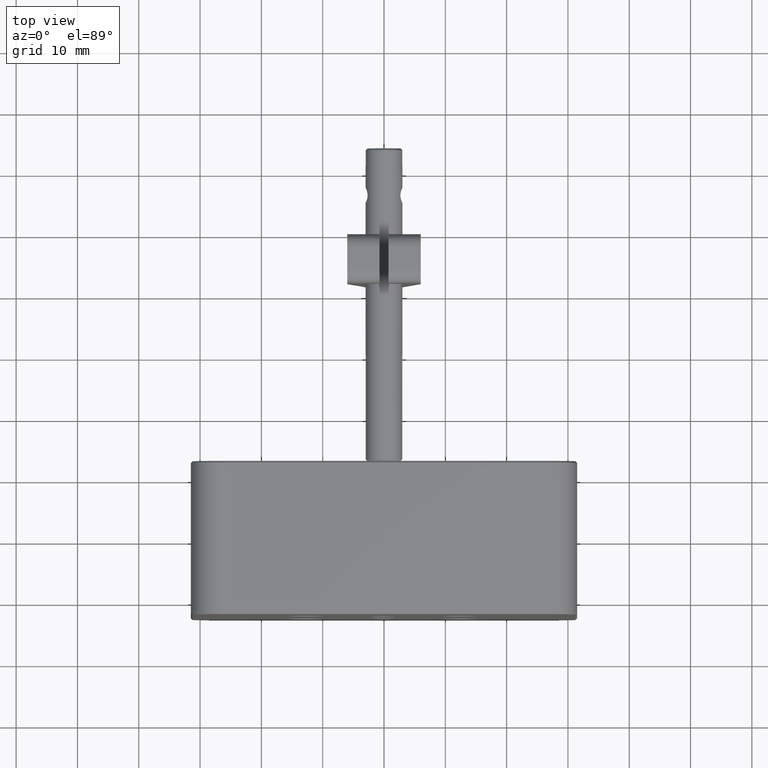
[diagram: clean part render]
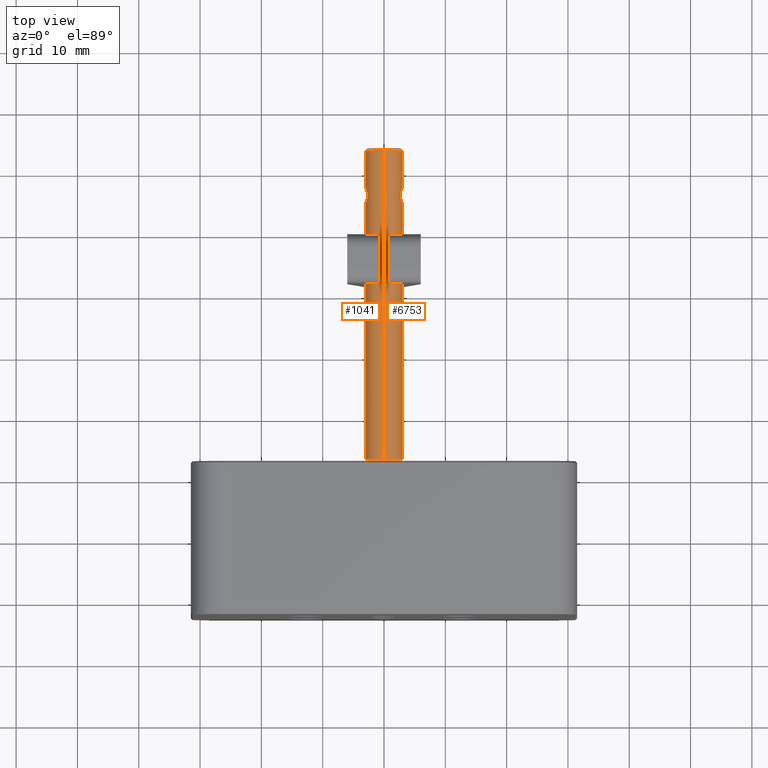
[diagram: same view with one multi-face feature highlighted, each face labeled with its STEP entity id]
A machine part, top view. The highlighted faces form ONE feature: a constant-radius fillet chain: 2 tangent blend faces with common blend radius 3 mm. The faces share edges in the B-rep.
Their STEP definitions:
[1] entity #6753 (Cylinder):
#29 = CARTESIAN_POINT ( 'NONE',  ( 2.742993584607485325, 55.32000686271995704, 28.21549903122157232 ) ) ;
#30 = B_SPLINE_CURVE_WITH_KNOTS ( 'NONE', 3,
 ( #7488, #5297, #6118, #1578, #2333, #7514, #9062, #142, #5329, #876, #6085, #3132, #1619, #6816, #4629, #3018, #3051, #1460, #6641, #8145, #7219, #1938 ),
 .UNSPECIFIED., .F., .F.,
 ( 4, 2, 2, 2, 2, 2, 2, 2, 2, 2, 4 ),
 ( 0.5000000000000000000, 0.5625000000000026645, 0.6250000000000052180, 0.6875000000000078826, 0.7187500000000077716, 0.7500000000000076605, 0.8125000000000074385, 0.8437500000000062172, 0.8750000000000048850, 0.9375000000000024425, 1.000000000000000000 ),
 .UNSPECIFIED. ) ;
#142 = CARTESIAN_POINT ( 'NONE',  ( 2.711093813284435772, 56.28645877782742701, 25.71493839912893620 ) ) ;
#146 = CARTESIAN_POINT ( 'NONE',  ( 1.266363902315430628E-15, 63.20000000000000284, 29.99999999999999645 ) ) ;
#179 = CARTESIAN_POINT ( 'NONE',  ( 3.000000000000002665, 54.62858803072960967, 26.99999999999999645 ) ) ;
#225 = VECTOR ( 'NONE', #4037, 1000.000000000000000 ) ;
#266 = VERTEX_POINT ( 'NONE', #1054 ) ;
#714 = CARTESIAN_POINT ( 'NONE',  ( 3.000000000000002665, 54.62858803072960967, 26.99999999999999645 ) ) ;
#767 = CARTESIAN_POINT ( 'NONE',  ( 2.863156291266175213, 56.82077885195585765, 27.89809188652233019 ) ) ;
#864 = EDGE_CURVE ( 'NONE', #266, #8354, #8572, .T. ) ;
#876 = CARTESIAN_POINT ( 'NONE',  ( 2.680936225662289729, 56.04636775738813981, 25.65353188658233563 ) ) ;
#1054 = CARTESIAN_POINT ( 'NONE',  ( -6.297159551001143805E-16, 12.80000000000001315, 30.00000000000000000 ) ) ;
#1130 = CARTESIAN_POINT ( 'NONE',  ( -1.410501157148619000E-15, 7.500000000000020428, 24.00000000000000000 ) ) ;
#1432 = ORIENTED_EDGE ( 'NONE', *, *, #6834, .T. ) ;
#1460 = CARTESIAN_POINT ( 'NONE',  ( 2.884629081610074142, 54.88045870483150424, 26.16566217916410508 ) ) ;
#1467 = CARTESIAN_POINT ( 'NONE',  ( 2.982912540820880309, 54.66257313694116249, 27.36001679651247898 ) ) ;
#1578 = CARTESIAN_POINT ( 'NONE',  ( 2.924960236120061285, 56.97105211024325655, 26.31264447736193191 ) ) ;
#1619 = CARTESIAN_POINT ( 'NONE',  ( 2.695653176012114738, 55.54786774696943752, 25.68126583301325638 ) ) ;
#1649 = AXIS2_PLACEMENT_3D ( 'NONE', #8612, #7736, #9308 ) ;
#1938 = CARTESIAN_POINT ( 'NONE',  ( 3.000000000000002665, 54.62858803072960967, 26.99999999999999645 ) ) ;
#2198 = VERTEX_POINT ( 'NONE', #4138 ) ;
#2221 = CARTESIAN_POINT ( 'NONE',  ( 2.695361982634222553, 55.54887713839933383, 28.31940538992521539 ) ) ;
#2286 = CARTESIAN_POINT ( 'NONE',  ( 2.800714651327416593, 56.64958877824351902, 28.08301864307926721 ) ) ;
#2333 = CARTESIAN_POINT ( 'NONE',  ( 2.884294066402455670, 56.87868913147992345, 26.16454869500139324 ) ) ;
#2828 = CARTESIAN_POINT ( 'NONE',  ( -1.035800886337628865E-15, 7.500000000000020428, 27.00000000000000000 ) ) ;
#2928 = CARTESIAN_POINT ( 'NONE',  ( 3.000000000000001332, 54.62858799216142103, 27.17927250951342089 ) ) ;
#2989 = CARTESIAN_POINT ( 'NONE',  ( 2.676237538582455056, 55.96125347879695511, 28.35563736555018011 ) ) ;
#3018 = CARTESIAN_POINT ( 'NONE',  ( 2.800703641045307002, 55.11526152153748370, 25.92351790945599888 ) ) ;
#3051 = CARTESIAN_POINT ( 'NONE',  ( 2.821759406356729727, 55.05266209511345465, 25.97922823948040616 ) ) ;
#3056 = CARTESIAN_POINT ( 'NONE',  ( 2.939118746011079697, 57.00190417940464727, 27.60707133254236467 ) ) ;
#3132 = CARTESIAN_POINT ( 'NONE',  ( 2.676271852669692475, 55.71721700651286113, 25.64443038552985143 ) ) ;
#3357 = LINE ( 'NONE', #4547, #8817 ) ;
#3621 = VERTEX_POINT ( 'NONE', #179 ) ;
#3656 = CARTESIAN_POINT ( 'NONE',  ( 2.863688853552024405, 54.93783021983080772, 27.89643120297812473 ) ) ;
#3764 = CARTESIAN_POINT ( 'NONE',  ( 2.680838108646928397, 56.04462143588882128, 28.34665780393701340 ) ) ;
#3800 = B_SPLINE_CURVE_WITH_KNOTS ( 'NONE', 3,
 ( #714, #2928, #1467, #4515, #8215, #4459, #3656, #5250, #5941, #6002, #29, #2221, #7407, #2989, #3764, #6735, #8943, #5216, #2286, #767, #7476, #5972, #3056, #3957, #6805, #8248 ),
 .UNSPECIFIED., .F., .F.,
 ( 4, 2, 2, 2, 2, 2, 2, 2, 2, 2, 2, 2, 4 ),
 ( 0.0000000000000000000, 0.06249999999999550360, 0.09374999999999381051, 0.1249999999999921174, 0.1562499999999904243, 0.1874999999999887312, 0.2499999999999876765, 0.2812499999999883982, 0.3124999999999891753, 0.3749999999999912847, 0.4062499999999931721, 0.4374999999999951150, 0.5000000000000000000 ),
 .UNSPECIFIED. ) ;
#3804 = VERTEX_POINT ( 'NONE', #146 ) ;
#3957 = CARTESIAN_POINT ( 'NONE',  ( 2.982897722331992352, 57.09744145957878914, 27.36074866860555588 ) ) ;
#4037 = DIRECTION ( 'NONE',  ( 7.524126418315660586E-17, 1.000000000000000000, -7.612291374223398276E-17 ) ) ;
#4138 = CARTESIAN_POINT ( 'NONE',  ( 8.843574004376533366E-16, 63.20000000000000284, 23.99999999999999645 ) ) ;
#4181 = FACE_OUTER_BOUND ( 'NONE', #7645, .T. ) ;
#4459 = CARTESIAN_POINT ( 'NONE',  ( 2.884144009577224388, 54.88665983182728780, 27.82908781005663101 ) ) ;
#4513 = EDGE_CURVE ( 'NONE', #6719, #3621, #30, .T. ) ;
#4515 = CARTESIAN_POINT ( 'NONE',  ( 2.939647029497050923, 54.75691992952820897, 27.60441721679530147 ) ) ;
#4547 = CARTESIAN_POINT ( 'NONE',  ( -1.028494655270844175E-15, 7.500000000000020428, 30.00000000000000000 ) ) ;
#4629 = CARTESIAN_POINT ( 'NONE',  ( 2.761335869332166126, 55.24898266117230605, 25.82621177678168678 ) ) ;
#4648 = ORIENTED_EDGE ( 'NONE', *, *, #6887, .F. ) ;
#4692 = DIRECTION ( 'NONE',  ( -7.524126418315660586E-17, -1.000000000000000000, 7.612291374223398276E-17 ) ) ;
#4976 = LINE ( 'NONE', #1130, #225 ) ;
#4992 = CARTESIAN_POINT ( 'NONE',  ( 2.999999987643653387, 57.13141194402265910, 27.00027228311324734 ) ) ;
#5088 = DIRECTION ( 'NONE',  ( -1.249000902703301354E-16, 0.0000000000000000000, -1.000000000000000000 ) ) ;
#5216 = CARTESIAN_POINT ( 'NONE',  ( 2.757722252271193053, 56.51140873202456305, 28.18343022751907867 ) ) ;
#5238 = ORIENTED_EDGE ( 'NONE', *, *, #864, .T. ) ;
#5250 = CARTESIAN_POINT ( 'NONE',  ( 2.821769576235329424, 55.05261913779806804, 28.02074443925186742 ) ) ;
#5297 = CARTESIAN_POINT ( 'NONE',  ( 3.000016275080912287, 57.13145123874927833, 26.82081821784641917 ) ) ;
#5329 = CARTESIAN_POINT ( 'NONE',  ( 2.698549850065692368, 56.20927834188110239, 25.68918951284737417 ) ) ;
#5890 = FACE_BOUND ( 'NONE', #8528, .T. ) ;
#5941 = CARTESIAN_POINT ( 'NONE',  ( 2.800644241308079874, 55.11542206591926885, 28.07664938908856556 ) ) ;
#5972 = CARTESIAN_POINT ( 'NONE',  ( 2.922001930620950372, 56.96354853541588881, 27.68380853861775748 ) ) ;
#6002 = CARTESIAN_POINT ( 'NONE',  ( 2.761066167029606166, 55.24994033803589133, 28.17443420193783155 ) ) ;
#6085 = CARTESIAN_POINT ( 'NONE',  ( 2.676336387088770419, 55.96154252191108469, 25.64455780447437405 ) ) ;
#6118 = CARTESIAN_POINT ( 'NONE',  ( 2.983149971520965060, 57.09794586245956793, 26.64129922665397743 ) ) ;
#6237 = DIRECTION ( 'NONE',  ( 1.249000902703302587E-16, 0.0000000000000000000, 1.000000000000000000 ) ) ;
#6313 = EDGE_CURVE ( 'NONE', #2198, #3804, #6686, .T. ) ;
#6405 = ORIENTED_EDGE ( 'NONE', *, *, #6313, .T. ) ;
#6641 = CARTESIAN_POINT ( 'NONE',  ( 2.925036744140012690, 54.78878534946872492, 26.31294670080524511 ) ) ;
#6682 = AXIS2_PLACEMENT_3D ( 'NONE', #2828, #8047, #5088 ) ;
#6686 = CIRCLE ( 'NONE', #8305, 2.999999999999999112 ) ;
#6719 = VERTEX_POINT ( 'NONE', #4992 ) ;
#6735 = CARTESIAN_POINT ( 'NONE',  ( 2.698116405448399924, 56.20608288682623055, 28.31169663730920050 ) ) ;
#6753 = ADVANCED_FACE ( 'NONE', ( #4181, #5890 ), #8452, .T. ) ;
#6805 = CARTESIAN_POINT ( 'NONE',  ( 2.999983700206394488, 57.13137264929606118, 27.17972634838007906 ) ) ;
#6816 = CARTESIAN_POINT ( 'NONE',  ( 2.742473716033703823, 55.32231226451845885, 25.78334911375738514 ) ) ;
#6834 = EDGE_CURVE ( 'NONE', #3621, #6719, #3800, .T. ) ;
#6887 = EDGE_CURVE ( 'NONE', #266, #3804, #3357, .T. ) ;
#7077 = ORIENTED_EDGE ( 'NONE', *, *, #8522, .T. ) ;
#7219 = CARTESIAN_POINT ( 'NONE',  ( 3.000000000000001332, 54.62858806966088565, 26.81903971957688526 ) ) ;
#7407 = CARTESIAN_POINT ( 'NONE',  ( 2.676471506585906823, 55.71230894579573345, 28.35517541064196578 ) ) ;
#7476 = CARTESIAN_POINT ( 'NONE',  ( 2.883946077072312875, 56.87285482154926086, 27.82978577029155787 ) ) ;
#7488 = CARTESIAN_POINT ( 'NONE',  ( 2.999999987643653387, 57.13141194402265910, 27.00027228311324734 ) ) ;
#7514 = CARTESIAN_POINT ( 'NONE',  ( 2.800573892822808997, 56.64924384759742537, 25.91652548929492994 ) ) ;
#7645 = EDGE_LOOP ( 'NONE', ( #4648, #5238, #7077, #6405 ) ) ;
#7736 = DIRECTION ( 'NONE',  ( 7.524126418315660586E-17, 1.000000000000000000, -7.612291374223398276E-17 ) ) ;
#8047 = DIRECTION ( 'NONE',  ( 7.524126418315660586E-17, 1.000000000000000000, -7.612291374223398276E-17 ) ) ;
#8145 = CARTESIAN_POINT ( 'NONE',  ( 2.983215448895196964, 54.66190703844492305, 26.64179925184803466 ) ) ;
#8215 = CARTESIAN_POINT ( 'NONE',  ( 2.922115817965446727, 54.79619377405805380, 27.68330989394329578 ) ) ;
#8248 = CARTESIAN_POINT ( 'NONE',  ( 2.999999987643653387, 57.13141194402265910, 27.00027228311324734 ) ) ;
#8305 = AXIS2_PLACEMENT_3D ( 'NONE', #8483, #4692, #6237 ) ;
#8354 = VERTEX_POINT ( 'NONE', #9162 ) ;
#8452 = CYLINDRICAL_SURFACE ( 'NONE', #6682, 2.999999999999999112 ) ;
#8483 = CARTESIAN_POINT ( 'NONE',  ( 3.155137528664192917E-15, 63.20000000000000284, 26.99999999999999645 ) ) ;
#8522 = EDGE_CURVE ( 'NONE', #8354, #2198, #4976, .T. ) ;
#8528 = EDGE_LOOP ( 'NONE', ( #1432, #8801 ) ) ;
#8572 = CIRCLE ( 'NONE', #1649, 2.999999999999999112 ) ;
#8612 = CARTESIAN_POINT ( 'NONE',  ( -6.370221861668986767E-16, 12.80000000000001315, 27.00000000000000000 ) ) ;
#8801 = ORIENTED_EDGE ( 'NONE', *, *, #4513, .T. ) ;
#8817 = VECTOR ( 'NONE', #9142, 1000.000000000000000 ) ;
#8943 = CARTESIAN_POINT ( 'NONE',  ( 2.711166441064909893, 56.28673457485329834, 28.28489739273718229 ) ) ;
#9062 = CARTESIAN_POINT ( 'NONE',  ( 2.758114549131716942, 56.51315193445640972, 25.81743665551577038 ) ) ;
#9142 = DIRECTION ( 'NONE',  ( 7.524126418315660586E-17, 1.000000000000000000, -7.612291374223398276E-17 ) ) ;
#9162 = CARTESIAN_POINT ( 'NONE',  ( -1.011722456977889404E-15, 12.80000000000001315, 24.00000000000000000 ) ) ;
#9308 = DIRECTION ( 'NONE',  ( 1.249000902703301601E-16, 0.0000000000000000000, 1.000000000000000000 ) ) ;
[2] entity #1041 (Cylinder):
#37 = CARTESIAN_POINT ( 'NONE',  ( -2.800644241311746718, 55.11542206590202397, 25.92335061092050097 ) ) ;
#102 = CARTESIAN_POINT ( 'NONE',  ( -2.982897722332215729, 57.09744145957883887, 26.63925133139572310 ) ) ;
#146 = CARTESIAN_POINT ( 'NONE',  ( 1.266363902315430628E-15, 63.20000000000000284, 29.99999999999999645 ) ) ;
#225 = VECTOR ( 'NONE', #4037, 1000.000000000000000 ) ;
#266 = VERTEX_POINT ( 'NONE', #1054 ) ;
#421 = CARTESIAN_POINT ( 'NONE',  ( -2.711093813282989373, 56.28645877781801943, 28.28506160087420440 ) ) ;
#777 = CARTESIAN_POINT ( 'NONE',  ( -2.676237538582465714, 55.96125347878705725, 25.64436263444984121 ) ) ;
#811 = CARTESIAN_POINT ( 'NONE',  ( -2.922001930619495091, 56.96354853541279084, 26.31619146137668253 ) ) ;
#871 = CARTESIAN_POINT ( 'NONE',  ( -2.821769576249066436, 55.05261913775408544, 25.97925556078888576 ) ) ;
#970 = VERTEX_POINT ( 'NONE', #7974 ) ;
#1040 = EDGE_CURVE ( 'NONE', #8354, #266, #2150, .T. ) ;
#1041 = ADVANCED_FACE ( 'NONE', ( #1102, #6463 ), #3573, .T. ) ;
#1054 = CARTESIAN_POINT ( 'NONE',  ( -6.297159551001143805E-16, 12.80000000000001315, 30.00000000000000000 ) ) ;
#1067 = CARTESIAN_POINT ( 'NONE',  ( 3.155137528664192917E-15, 63.20000000000000284, 26.99999999999999645 ) ) ;
#1102 = FACE_BOUND ( 'NONE', #9590, .T. ) ;
#1130 = CARTESIAN_POINT ( 'NONE',  ( -1.410501157148619000E-15, 7.500000000000020428, 24.00000000000000000 ) ) ;
#1336 = CARTESIAN_POINT ( 'NONE',  ( -2.925036744138640454, 54.78878534947123313, 27.68705329920249270 ) ) ;
#1546 = CARTESIAN_POINT ( 'NONE',  ( -2.999999987643648502, 57.13141194402265910, 26.99972771688675621 ) ) ;
#1574 = CARTESIAN_POINT ( 'NONE',  ( -2.676471506585890836, 55.71230894581550785, 25.64482458935801290 ) ) ;
#1612 = CARTESIAN_POINT ( 'NONE',  ( -2.761066167025937546, 55.24994033805314331, 25.82556579805313746 ) ) ;
#1894 = CARTESIAN_POINT ( 'NONE',  ( -2.680936225660478733, 56.04636775736641141, 28.34646811342131301 ) ) ;
#1993 = CARTESIAN_POINT ( 'NONE',  ( -3.000016275080920281, 57.13145123874931386, 27.17918178229298576 ) ) ;
#2150 = CIRCLE ( 'NONE', #3543, 2.999999999999999112 ) ;
#2198 = VERTEX_POINT ( 'NONE', #4138 ) ;
#2259 = CARTESIAN_POINT ( 'NONE',  ( -2.711166441068684207, 56.28673457487393961, 25.71510260727103869 ) ) ;
#2313 = AXIS2_PLACEMENT_3D ( 'NONE', #1067, #8461, #4762 ) ;
#2392 = CARTESIAN_POINT ( 'NONE',  ( -2.999999999999998224, 54.62858803072961678, 26.99999999999999645 ) ) ;
#2640 = CARTESIAN_POINT ( 'NONE',  ( -2.676271852669786178, 55.71721700650703468, 28.35556961446994606 ) ) ;
#2654 = EDGE_CURVE ( 'NONE', #4537, #970, #5736, .T. ) ;
#2672 = CARTESIAN_POINT ( 'NONE',  ( -2.983149971524382771, 57.09794586246793813, 27.35870077332668870 ) ) ;
#2714 = CARTESIAN_POINT ( 'NONE',  ( -6.370221861668986767E-16, 12.80000000000001315, 27.00000000000000000 ) ) ;
#2751 = DIRECTION ( 'NONE',  ( 1.249000902703301601E-16, 0.0000000000000000000, 1.000000000000000000 ) ) ;
#2778 = CARTESIAN_POINT ( 'NONE',  ( -2.983215448896561650, 54.66190703844243615, 27.35820074814423464 ) ) ;
#2849 = CARTESIAN_POINT ( 'NONE',  ( -2.800703641045090286, 55.11526152153743396, 28.07648209054452337 ) ) ;
#3094 = CARTESIAN_POINT ( 'NONE',  ( -2.883946077073761494, 56.87285482155234462, 26.17021422971402345 ) ) ;
#3357 = LINE ( 'NONE', #4547, #8817 ) ;
#3543 = AXIS2_PLACEMENT_3D ( 'NONE', #2714, #8013, #2751 ) ;
#3573 = CYLINDRICAL_SURFACE ( 'NONE', #7997, 2.999999999999999112 ) ;
#3703 = ORIENTED_EDGE ( 'NONE', *, *, #8522, .F. ) ;
#3804 = VERTEX_POINT ( 'NONE', #146 ) ;
#3875 = CARTESIAN_POINT ( 'NONE',  ( -2.999983700206376724, 57.13137264929601145, 26.82027365148053732 ) ) ;
#3936 = EDGE_LOOP ( 'NONE', ( #5108, #5202, #9454, #3703 ) ) ;
#4037 = DIRECTION ( 'NONE',  ( 7.524126418315660586E-17, 1.000000000000000000, -7.612291374223398276E-17 ) ) ;
#4116 = ORIENTED_EDGE ( 'NONE', *, *, #2654, .T. ) ;
#4138 = CARTESIAN_POINT ( 'NONE',  ( 8.843574004376533366E-16, 63.20000000000000284, 23.99999999999999645 ) ) ;
#4141 = CARTESIAN_POINT ( 'NONE',  ( -2.800573892821718758, 56.64924384759124365, 28.08347451070827816 ) ) ;
#4191 = CARTESIAN_POINT ( 'NONE',  ( -2.999999999999996003, 54.62858799216140682, 26.82072749062477968 ) ) ;
#4325 = CARTESIAN_POINT ( 'NONE',  ( -2.761335869332377957, 55.24898266117232737, 28.17378822321776610 ) ) ;
#4537 = VERTEX_POINT ( 'NONE', #2392 ) ;
#4547 = CARTESIAN_POINT ( 'NONE',  ( -1.028494655270844175E-15, 7.500000000000020428, 30.00000000000000000 ) ) ;
#4762 = DIRECTION ( 'NONE',  ( 1.249000902703302587E-16, 0.0000000000000000000, 1.000000000000000000 ) ) ;
#4914 = CARTESIAN_POINT ( 'NONE',  ( -2.758114549134595972, 56.51315193447518936, 28.18256334447794131 ) ) ;
#4976 = LINE ( 'NONE', #1130, #225 ) ;
#5108 = ORIENTED_EDGE ( 'NONE', *, *, #1040, .T. ) ;
#5180 = EDGE_CURVE ( 'NONE', #3804, #2198, #7778, .T. ) ;
#5202 = ORIENTED_EDGE ( 'NONE', *, *, #6887, .T. ) ;
#5228 = CARTESIAN_POINT ( 'NONE',  ( -2.742993584603976132, 55.32000686274442103, 25.78450096877077158 ) ) ;
#5261 = CARTESIAN_POINT ( 'NONE',  ( -2.863156291263865505, 56.82077885195057831, 26.10190811347084150 ) ) ;
#5736 = B_SPLINE_CURVE_WITH_KNOTS ( 'NONE', 3,
 ( #9488, #4191, #9022, #6079, #8956, #8260, #9057, #871, #37, #1612, #5228, #7511, #1574, #777, #5983, #6745, #2259, #7452, #8992, #5261, #3094, #811, #6012, #102, #3875, #1546 ),
 .UNSPECIFIED., .F., .F.,
 ( 4, 2, 2, 2, 2, 2, 2, 2, 2, 2, 2, 2, 4 ),
 ( 0.0000000000000000000, 0.06249999999999841793, 0.09374999999999719669, 0.1249999999999959754, 0.1562499999999947542, 0.1874999999999935052, 0.2499999999999938383, 0.2812499999999940048, 0.3124999999999941158, 0.3749999999999967804, 0.4062499999999976685, 0.4374999999999985012, 0.5000000000000000000 ),
 .UNSPECIFIED. ) ;
#5983 = CARTESIAN_POINT ( 'NONE',  ( -2.680838108647467966, 56.04462143588882839, 25.65334219606409150 ) ) ;
#6012 = CARTESIAN_POINT ( 'NONE',  ( -2.939118746010964678, 57.00190417940464016, 26.39292866745699584 ) ) ;
#6079 = CARTESIAN_POINT ( 'NONE',  ( -2.939647029507017173, 54.75691992950644504, 26.39558278326101615 ) ) ;
#6249 = ORIENTED_EDGE ( 'NONE', *, *, #7211, .T. ) ;
#6351 = CARTESIAN_POINT ( 'NONE',  ( -2.698549850067498035, 56.20927834190279526, 28.31081048714895942 ) ) ;
#6441 = CARTESIAN_POINT ( 'NONE',  ( -2.999999987643648502, 57.13141194402265910, 26.99972771688675621 ) ) ;
#6463 = FACE_OUTER_BOUND ( 'NONE', #3936, .T. ) ;
#6536 = CARTESIAN_POINT ( 'NONE',  ( -2.999999999999998224, 54.62858803072961678, 26.99999999999999645 ) ) ;
#6745 = CARTESIAN_POINT ( 'NONE',  ( -2.698116405447864796, 56.20608288682623055, 25.68830336268971237 ) ) ;
#6887 = EDGE_CURVE ( 'NONE', #266, #3804, #3357, .T. ) ;
#7069 = CARTESIAN_POINT ( 'NONE',  ( -2.676336387088721569, 55.96154252191398371, 28.35544219552571121 ) ) ;
#7200 = CARTESIAN_POINT ( 'NONE',  ( -2.924960236116632029, 56.97105211023488636, 27.68735552265740552 ) ) ;
#7211 = EDGE_CURVE ( 'NONE', #970, #4537, #8111, .T. ) ;
#7452 = CARTESIAN_POINT ( 'NONE',  ( -2.757722252263644869, 56.51140873198329473, 25.81656977246448292 ) ) ;
#7511 = CARTESIAN_POINT ( 'NONE',  ( -2.695361982641240939, 55.54887713835043428, 25.68059461009009681 ) ) ;
#7778 = CIRCLE ( 'NONE', #2313, 2.999999999999999112 ) ;
#7800 = CARTESIAN_POINT ( 'NONE',  ( -2.884294066403539247, 56.87868913148606964, 27.83545130499537379 ) ) ;
#7865 = CARTESIAN_POINT ( 'NONE',  ( -2.695653176005636364, 55.54786774699579865, 28.31873416700084789 ) ) ;
#7967 = CARTESIAN_POINT ( 'NONE',  ( -2.999999999999997780, 54.62858806966093539, 27.18096028042326040 ) ) ;
#7974 = CARTESIAN_POINT ( 'NONE',  ( -2.999999987643648502, 57.13141194402265910, 26.99972771688675621 ) ) ;
#7997 = AXIS2_PLACEMENT_3D ( 'NONE', #9399, #8675, #8742 ) ;
#7999 = CARTESIAN_POINT ( 'NONE',  ( -2.742473716036937681, 55.32231226450527117, 28.21665088623552720 ) ) ;
#8013 = DIRECTION ( 'NONE',  ( 7.524126418315660586E-17, 1.000000000000000000, -7.612291374223398276E-17 ) ) ;
#8067 = CARTESIAN_POINT ( 'NONE',  ( -2.821759406353846700, 55.05266209512132036, 28.02077176052811680 ) ) ;
#8100 = CARTESIAN_POINT ( 'NONE',  ( -2.884629081615830870, 54.88045870481573729, 27.83433782081881702 ) ) ;
#8111 = B_SPLINE_CURVE_WITH_KNOTS ( 'NONE', 3,
 ( #6441, #1993, #2672, #7200, #7800, #4141, #4914, #421, #6351, #1894, #7069, #2640, #7865, #7999, #4325, #2849, #8067, #8100, #1336, #2778, #7967, #6536 ),
 .UNSPECIFIED., .F., .F.,
 ( 4, 2, 2, 2, 2, 2, 2, 2, 2, 2, 4 ),
 ( 0.5000000000000000000, 0.5625000000000015543, 0.6250000000000031086, 0.6875000000000046629, 0.7187500000000045519, 0.7500000000000044409, 0.8125000000000015543, 0.8437500000000009992, 0.8750000000000004441, 0.9375000000000002220, 1.000000000000000000 ),
 .UNSPECIFIED. ) ;
#8260 = CARTESIAN_POINT ( 'NONE',  ( -2.884144009577754630, 54.88665983182526986, 26.17091218994544377 ) ) ;
#8354 = VERTEX_POINT ( 'NONE', #9162 ) ;
#8461 = DIRECTION ( 'NONE',  ( -7.524126418315660586E-17, -1.000000000000000000, 7.612291374223398276E-17 ) ) ;
#8522 = EDGE_CURVE ( 'NONE', #8354, #2198, #4976, .T. ) ;
#8675 = DIRECTION ( 'NONE',  ( 7.524126418315660586E-17, 1.000000000000000000, -7.612291374223398276E-17 ) ) ;
#8742 = DIRECTION ( 'NONE',  ( -1.249000902703301354E-16, 0.0000000000000000000, -1.000000000000000000 ) ) ;
#8817 = VECTOR ( 'NONE', #9142, 1000.000000000000000 ) ;
#8956 = CARTESIAN_POINT ( 'NONE',  ( -2.922115817964908047, 54.79619377406005043, 26.31669010605465431 ) ) ;
#8992 = CARTESIAN_POINT ( 'NONE',  ( -2.800714651332032457, 56.64958877825402794, 25.91698135693442140 ) ) ;
#9022 = CARTESIAN_POINT ( 'NONE',  ( -2.982912540800931378, 54.66257313698463349, 26.63998320337486447 ) ) ;
#9057 = CARTESIAN_POINT ( 'NONE',  ( -2.863688853538283841, 54.93783021987478321, 26.10356879698113985 ) ) ;
#9142 = DIRECTION ( 'NONE',  ( 7.524126418315660586E-17, 1.000000000000000000, -7.612291374223398276E-17 ) ) ;
#9162 = CARTESIAN_POINT ( 'NONE',  ( -1.011722456977889404E-15, 12.80000000000001315, 24.00000000000000000 ) ) ;
#9399 = CARTESIAN_POINT ( 'NONE',  ( -1.035800886337628865E-15, 7.500000000000020428, 27.00000000000000000 ) ) ;
#9454 = ORIENTED_EDGE ( 'NONE', *, *, #5180, .T. ) ;
#9488 = CARTESIAN_POINT ( 'NONE',  ( -2.999999999999998224, 54.62858803072961678, 26.99999999999999645 ) ) ;
#9590 = EDGE_LOOP ( 'NONE', ( #4116, #6249 ) ) ;